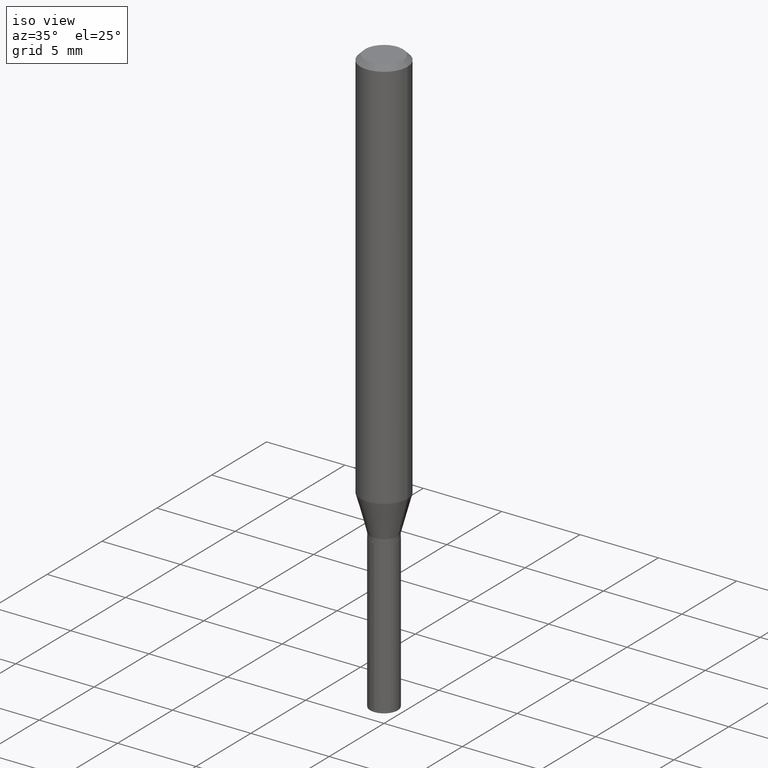
[diagram: clean part render]
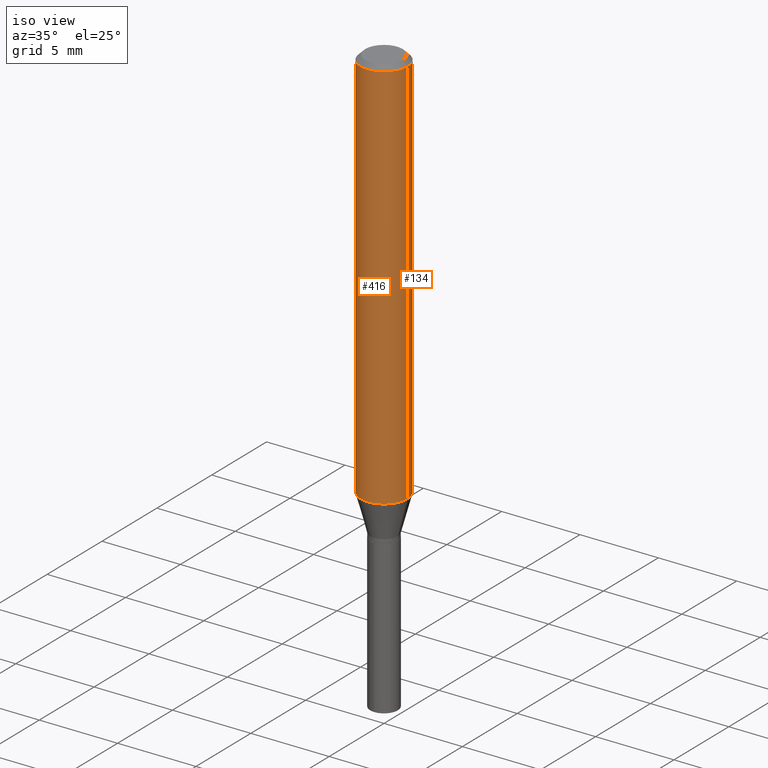
[diagram: same view with one multi-face feature highlighted, each face labeled with its STEP entity id]
A machine part, iso view. The highlighted faces form ONE feature: a constant-radius fillet chain: 2 tangent blend faces with common blend radius 1.4999 mm. The faces share edges in the B-rep.
Their STEP definitions:
[1] entity #416 (Cylinder):
#3 = CARTESIAN_POINT ( 'NONE',  ( -0.05904999999999999832, -1.334628465406511892E-15, -0.01181000000000007218 ) ) ;
#13 = VERTEX_POINT ( 'NONE', #457 ) ;
#31 = DIRECTION ( 'NONE',  ( 1.000000000000000000, -6.982962677686266711E-15, 0.000000000000000000 ) ) ;
#46 = CIRCLE ( 'NONE', #198, 0.05904999999999999832 ) ;
#50 = DIRECTION ( 'NONE',  ( -2.445468806185136877E-29, 3.491481338843145188E-15, 1.000000000000000000 ) ) ;
#58 = CARTESIAN_POINT ( 'NONE',  ( -0.05905000000000006077, 4.195754854663395916E-16, -2.904631170795524694E-30 ) ) ;
#63 = AXIS2_PLACEMENT_3D ( 'NONE', #366, #296, #31 ) ;
#90 = CARTESIAN_POINT ( 'NONE',  ( 0.05904999999999999832, -4.535783407291118600E-16, -0.01181000000000007218 ) ) ;
#100 = VERTEX_POINT ( 'NONE', #3 ) ;
#121 = EDGE_CURVE ( 'NONE', #13, #216, #327, .T. ) ;
#142 = DIRECTION ( 'NONE',  ( 1.000000000000000000, -6.982962677686266711E-15, 4.876176775795935793E-29 ) ) ;
#144 = ORIENTED_EDGE ( 'NONE', *, *, #206, .F. ) ;
#188 = ORIENTED_EDGE ( 'NONE', *, *, #121, .T. ) ;
#198 = AXIS2_PLACEMENT_3D ( 'NONE', #256, #328, #213 ) ;
#206 = EDGE_CURVE ( 'NONE', #251, #100, #470, .T. ) ;
#207 = CARTESIAN_POINT ( 'NONE',  ( -0.05905000000000011628, -3.047598021667626732E-15, -0.9930379602953189888 ) ) ;
#213 = DIRECTION ( 'NONE',  ( 1.000000000000000000, -6.982962677686266711E-15, 0.000000000000000000 ) ) ;
#216 = VERTEX_POINT ( 'NONE', #90 ) ;
#219 = CARTESIAN_POINT ( 'NONE',  ( 0.000000000000000000, 0.000000000000000000, 0.000000000000000000 ) ) ;
#237 = ORIENTED_EDGE ( 'NONE', *, *, #365, .T. ) ;
#244 = FACE_OUTER_BOUND ( 'NONE', #480, .T. ) ;
#251 = VERTEX_POINT ( 'NONE', #207 ) ;
#256 = CARTESIAN_POINT ( 'NONE',  ( 2.888098660104664204E-31, -4.123439461173780263E-17, -0.01181000000000007218 ) ) ;
#264 = VECTOR ( 'NONE', #50, 39.37007874015748143 ) ;
#276 = CIRCLE ( 'NONE', #63, 0.05905000000000011628 ) ;
#296 = DIRECTION ( 'NONE',  ( -2.445468806185136597E-29, 3.491481338843145583E-15, 1.000000000000000000 ) ) ;
#307 = EDGE_CURVE ( 'NONE', #100, #216, #46, .T. ) ;
#309 = AXIS2_PLACEMENT_3D ( 'NONE', #219, #477, #142 ) ;
#327 = LINE ( 'NONE', #432, #264 ) ;
#328 = DIRECTION ( 'NONE',  ( -2.445468806185136597E-29, 3.491481338843145583E-15, 1.000000000000000000 ) ) ;
#329 = CYLINDRICAL_SURFACE ( 'NONE', #309, 0.05905000000000006077 ) ;
#333 = ORIENTED_EDGE ( 'NONE', *, *, #307, .F. ) ;
#356 = VECTOR ( 'NONE', #357, 39.37007874015748143 ) ;
#357 = DIRECTION ( 'NONE',  ( -2.445468806185136877E-29, 3.491481338843145188E-15, 1.000000000000000000 ) ) ;
#365 = EDGE_CURVE ( 'NONE', #251, #13, #276, .T. ) ;
#366 = CARTESIAN_POINT ( 'NONE',  ( 2.428443355259917154E-29, -3.467173507133967014E-15, -0.9930379602953189888 ) ) ;
#416 = ADVANCED_FACE ( 'NONE', ( #244 ), #329, .T. ) ;
#432 = CARTESIAN_POINT ( 'NONE',  ( 0.05905000000000006077, -4.123439461173744764E-16, 2.879382386107503023E-30 ) ) ;
#457 = CARTESIAN_POINT ( 'NONE',  ( 0.05905000000000011628, -3.879517453251341540E-15, -0.9930379602953189888 ) ) ;
#470 = LINE ( 'NONE', #58, #356 ) ;
#477 = DIRECTION ( 'NONE',  ( -2.445468806185136597E-29, 3.491481338843145583E-15, 1.000000000000000000 ) ) ;
#480 = EDGE_LOOP ( 'NONE', ( #144, #237, #188, #333 ) ) ;
[2] entity #134 (Cylinder):
#3 = CARTESIAN_POINT ( 'NONE',  ( -0.05904999999999999832, -1.334628465406511892E-15, -0.01181000000000007218 ) ) ;
#13 = VERTEX_POINT ( 'NONE', #457 ) ;
#15 = FACE_OUTER_BOUND ( 'NONE', #108, .T. ) ;
#22 = EDGE_CURVE ( 'NONE', #216, #100, #290, .T. ) ;
#24 = CIRCLE ( 'NONE', #417, 0.05905000000000011628 ) ;
#48 = DIRECTION ( 'NONE',  ( -2.445468806185136597E-29, 3.491481338843145583E-15, 1.000000000000000000 ) ) ;
#50 = DIRECTION ( 'NONE',  ( -2.445468806185136877E-29, 3.491481338843145188E-15, 1.000000000000000000 ) ) ;
#56 = CARTESIAN_POINT ( 'NONE',  ( 0.000000000000000000, 0.000000000000000000, 0.000000000000000000 ) ) ;
#58 = CARTESIAN_POINT ( 'NONE',  ( -0.05905000000000006077, 4.195754854663395916E-16, -2.904631170795524694E-30 ) ) ;
#59 = CYLINDRICAL_SURFACE ( 'NONE', #380, 0.05905000000000006077 ) ;
#72 = DIRECTION ( 'NONE',  ( -2.445468806185136597E-29, 3.491481338843145583E-15, 1.000000000000000000 ) ) ;
#90 = CARTESIAN_POINT ( 'NONE',  ( 0.05904999999999999832, -4.535783407291118600E-16, -0.01181000000000007218 ) ) ;
#96 = DIRECTION ( 'NONE',  ( 1.000000000000000000, -6.982962677686266711E-15, 4.876176775795935793E-29 ) ) ;
#100 = VERTEX_POINT ( 'NONE', #3 ) ;
#108 = EDGE_LOOP ( 'NONE', ( #476, #194, #404, #438 ) ) ;
#121 = EDGE_CURVE ( 'NONE', #13, #216, #327, .T. ) ;
#134 = ADVANCED_FACE ( 'NONE', ( #15 ), #59, .T. ) ;
#194 = ORIENTED_EDGE ( 'NONE', *, *, #206, .T. ) ;
#206 = EDGE_CURVE ( 'NONE', #251, #100, #470, .T. ) ;
#207 = CARTESIAN_POINT ( 'NONE',  ( -0.05905000000000011628, -3.047598021667626732E-15, -0.9930379602953189888 ) ) ;
#216 = VERTEX_POINT ( 'NONE', #90 ) ;
#251 = VERTEX_POINT ( 'NONE', #207 ) ;
#253 = CARTESIAN_POINT ( 'NONE',  ( 2.428443355259917154E-29, -3.467173507133967014E-15, -0.9930379602953189888 ) ) ;
#260 = CARTESIAN_POINT ( 'NONE',  ( 2.888098660104664204E-31, -4.123439461173780263E-17, -0.01181000000000007218 ) ) ;
#264 = VECTOR ( 'NONE', #50, 39.37007874015748143 ) ;
#290 = CIRCLE ( 'NONE', #341, 0.05904999999999999832 ) ;
#327 = LINE ( 'NONE', #432, #264 ) ;
#341 = AXIS2_PLACEMENT_3D ( 'NONE', #260, #48, #415 ) ;
#356 = VECTOR ( 'NONE', #357, 39.37007874015748143 ) ;
#357 = DIRECTION ( 'NONE',  ( -2.445468806185136877E-29, 3.491481338843145188E-15, 1.000000000000000000 ) ) ;
#359 = EDGE_CURVE ( 'NONE', #13, #251, #24, .T. ) ;
#363 = DIRECTION ( 'NONE',  ( 1.000000000000000000, -6.982962677686266711E-15, 0.000000000000000000 ) ) ;
#380 = AXIS2_PLACEMENT_3D ( 'NONE', #56, #467, #96 ) ;
#404 = ORIENTED_EDGE ( 'NONE', *, *, #22, .F. ) ;
#415 = DIRECTION ( 'NONE',  ( 1.000000000000000000, -6.982962677686266711E-15, 0.000000000000000000 ) ) ;
#417 = AXIS2_PLACEMENT_3D ( 'NONE', #253, #72, #363 ) ;
#432 = CARTESIAN_POINT ( 'NONE',  ( 0.05905000000000006077, -4.123439461173744764E-16, 2.879382386107503023E-30 ) ) ;
#438 = ORIENTED_EDGE ( 'NONE', *, *, #121, .F. ) ;
#457 = CARTESIAN_POINT ( 'NONE',  ( 0.05905000000000011628, -3.879517453251341540E-15, -0.9930379602953189888 ) ) ;
#467 = DIRECTION ( 'NONE',  ( -2.445468806185136597E-29, 3.491481338843145583E-15, 1.000000000000000000 ) ) ;
#470 = LINE ( 'NONE', #58, #356 ) ;
#476 = ORIENTED_EDGE ( 'NONE', *, *, #359, .T. ) ;